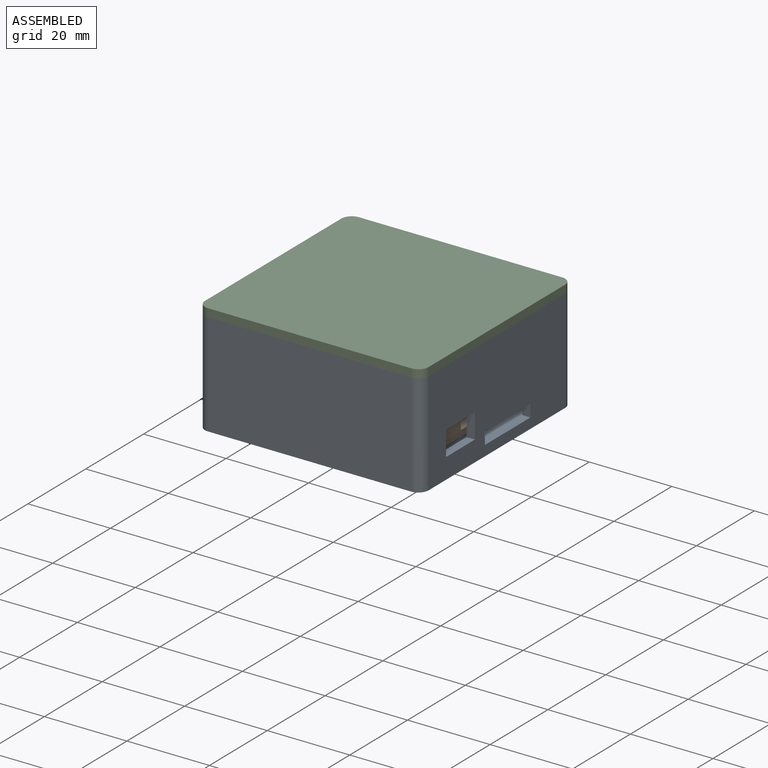
[diagram: assembled view]
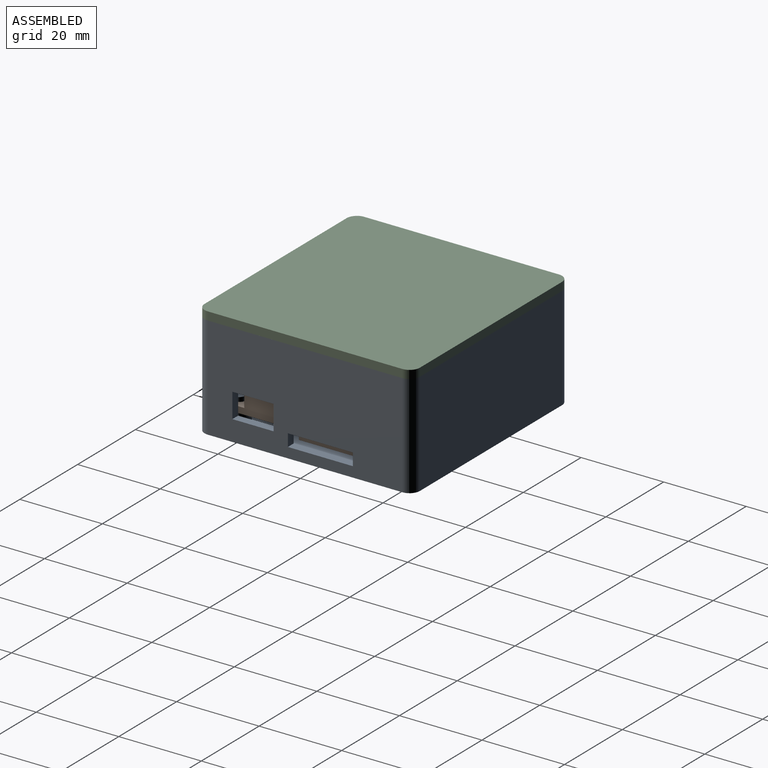
[diagram: assembled view, second angle]
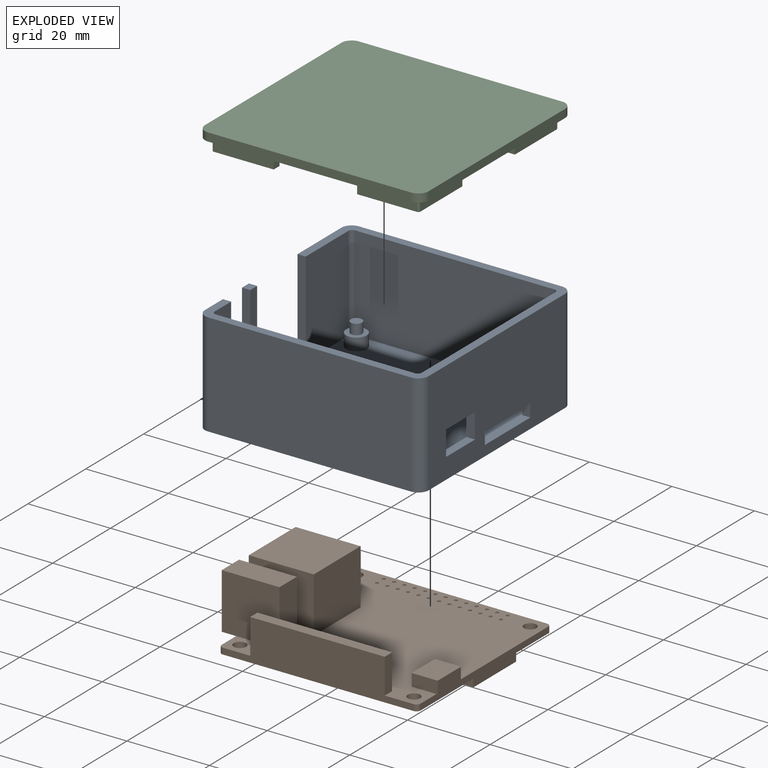
[diagram: exploded view]
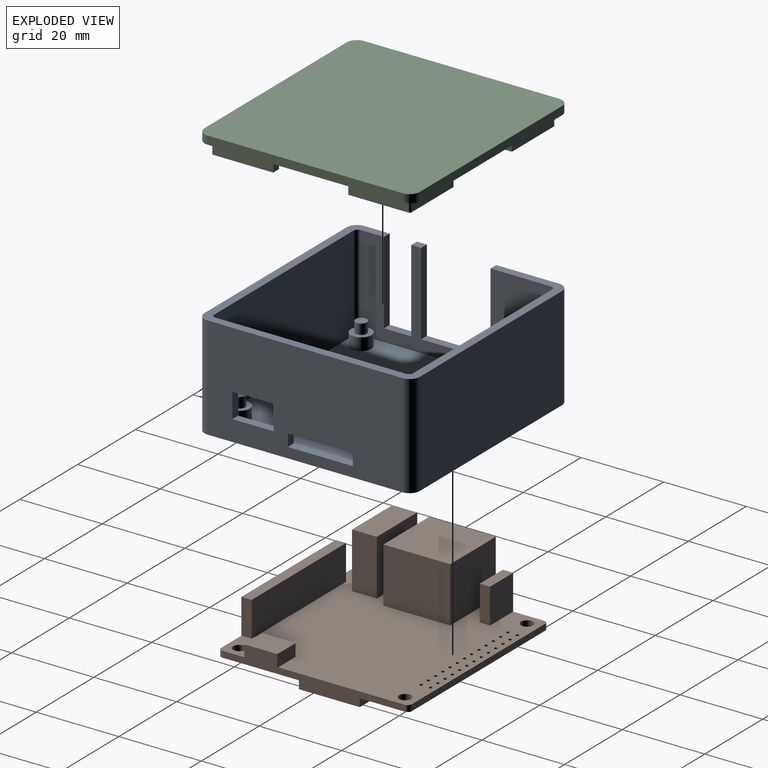
[diagram: exploded view, second angle]
ASSEMBLY  parts=3 mates=2
PART A: 50 faces, bbox 54.2x52.2x25 mm
  f0: plane 54.2x52.2mm, normal (0,0,1), area 353.5mm2, adj f1,f19,f20,f21,f22,f23,f24,f25
  f1: plane 46.2x23mm, normal (1,0,0), area 594.6mm2, adj f0,f2,f23,f24,f26,f36,f37,f38
  f2: plane 50.2x48.2mm, normal (0,0,1), area 2340.2mm2, adj f1,f3,f5,f7,f9,f19,f20,f21
  f3: cylinder r=2.5mm len=5mm, axis (0,0,-1), area 47.1mm2, adj f2,f4
  f4: plane 5x5mm, normal (0,0,1), area 13.7mm2, adj f3,f11
  f5: cylinder r=2.5mm len=5mm, axis (0,0,-1), area 47.1mm2, adj f2,f6
  f6: plane 5x5mm, normal (0,0,1), area 13.7mm2, adj f5,f13
  f7: cylinder r=2.5mm len=5mm, axis (0,0,-1), area 47.1mm2, adj f2,f8
  f8: plane 5x5mm, normal (0,0,1), area 13.7mm2, adj f7,f15
  f9: cylinder r=2.5mm len=5mm, axis (0,0,-1), area 47.1mm2, adj f2,f10
  f10: plane 5x5mm, normal (0,0,1), area 13.7mm2, adj f9,f17
  f11: cylinder r=1.38mm len=2.75mm, axis (0,0,-1), area 21.6mm2, adj f4,f12
  f12: plane 2.75x2.75mm, normal (0,0,1), area 5.9mm2, adj f11
  f13: cylinder r=1.38mm len=2.75mm, axis (0,0,-1), area 21.6mm2, adj f6,f14
  f14: plane 2.75x2.75mm, normal (0,0,1), area 5.9mm2, adj f13
  f15: cylinder r=1.38mm len=2.75mm, axis (0,0,-1), area 21.6mm2, adj f8,f16
  f16: plane 2.75x2.75mm, normal (0,0,1), area 5.9mm2, adj f15
  f17: cylinder r=1.38mm len=2.75mm, axis (0,0,-1), area 21.6mm2, adj f10,f18
  f18: plane 2.75x2.75mm, normal (0,0,1), area 5.9mm2, adj f17
  f19: cylinder r=1mm len=23mm, axis (0,0,-1), area 36.1mm2, adj f0,f2,f20,f25
  f20: plane 46.2x23mm, normal (-1,0,0), area 955.4mm2, adj f0,f2,f19,f21,f42,f43,f44,f45
  f21: cylinder r=1mm len=23mm, axis (0,0,-1), area 36.1mm2, adj f0,f2,f20,f22
  f22: plane 48.2x23mm, normal (0,1,0), area 1108.6mm2, adj f0,f2,f21,f23
  f23: cylinder r=1mm len=23mm, axis (0,0,-1), area 36.1mm2, adj f0,f1,f2,f22
  f24: cylinder r=1mm len=23mm, axis (0,0,-1), area 36.1mm2, adj f0,f1,f2,f25
  f25: plane 48.2x23mm, normal (0,-1,0), area 1108.6mm2, adj f0,f2,f19,f24
  f26: plane 2.4x2mm, normal (0,0,1), area 4.8mm2, adj f1,f31,f37,f39
  f27: plane 54.2x52.2mm, normal (0,0,-1), area 2823.9mm2, adj f28,f29,f30,f31,f32,f33,f34,f35
  f28: cylinder r=2.5mm len=25mm, axis (0,0,-1), area 98.2mm2, adj f0,f27,f29,f35
  f29: plane 49.2x25mm, normal (0,-1,0), area 1230mm2, adj f0,f27,f28,f30
  f30: cylinder r=2.5mm len=25mm, axis (0,0,-1), area 98.2mm2, adj f0,f27,f29,f31
  f31: plane 47.2x25mm, normal (-1,0,0), area 712mm2, adj f0,f26,f27,f30,f32,f36,f37,f38
  f32: cylinder r=2.5mm len=25mm, axis (0,0,-1), area 98.2mm2, adj f0,f27,f31,f33
  f33: plane 49.2x25mm, normal (0,1,0), area 1230mm2, adj f0,f27,f32,f34
  f34: cylinder r=2.5mm len=25mm, axis (0,0,-1), area 98.2mm2, adj f0,f27,f33,f35
  f35: plane 47.2x25mm, normal (1,0,0), area 1072.7mm2, adj f0,f27,f28,f34,f42,f43,f44,f45
  f36: plane 20x2mm, normal (0,1,0), area 40mm2, adj f0,f1,f31,f38
  f37: plane 20x2mm, normal (0,-1,0), area 40mm2, adj f1,f26,f31,f38
  f38: plane 6.6x2mm, normal (0,0,1), area 13.2mm2, adj f1,f31,f36,f37
  f39: plane 20x2mm, normal (0,1,0), area 40mm2, adj f1,f26,f31,f41
  f40: plane 20x2mm, normal (0,-1,0), area 40mm2, adj f0,f1,f31,f41
  f41: plane 16.8x2mm, normal (0,0,1), area 33.6mm2, adj f1,f31,f39,f40
  f42: plane 15.75x2mm, normal (0,0,1), area 31.5mm2, adj f20,f35,f43,f44
  f43: plane 3x2mm, normal (0,1,0), area 6mm2, adj f20,f35,f42,f45
  f44: plane 3x2mm, normal (0,-1,0), area 6mm2, adj f20,f35,f42,f45
  f45: plane 15.75x2mm, normal (0,0,-1), area 31.5mm2, adj f20,f35,f43,f44
  f46: plane 10x2mm, normal (0,0,1), area 20mm2, adj f20,f35,f47,f48
  f47: plane 6x2mm, normal (0,1,0), area 12mm2, adj f20,f35,f46,f49
  f48: plane 6x2mm, normal (0,-1,0), area 12mm2, adj f20,f35,f46,f49
  f49: plane 10x2mm, normal (0,0,-1), area 20mm2, adj f20,f35,f47,f48
PART B: 71 faces, bbox 52x46.2x17 mm
  f0: plane 14.5x2mm, normal (0,1,0), area 29mm2, adj f15,f68,f69,f70
  f1: plane 14.5x2mm, normal (0,-1,0), area 29mm2, adj f15,f68,f69,f70
  f2: plane 48.2x46.2mm, normal (0,0,1), area 1769.6mm2, adj f3,f4,f5,f6,f7,f8,f9,f10
  f3: cylinder r=1mm len=1.5mm, axis (0,0,-1), area 2.4mm2, adj f2,f4,f14,f15
  f4: plane 46.2x1.5mm, normal (0,1,0), area 69.3mm2, adj f2,f3,f5,f15
  f5: cylinder r=1mm len=1.5mm, axis (0,0,-1), area 2.4mm2, adj f2,f4,f6,f15
  f6: plane 44.2x10mm, normal (-1,0,0), area 87.6mm2, adj f2,f5,f7,f15,f52,f54,f55,f61
  f7: cylinder r=1mm len=1.5mm, axis (0,0,-1), area 2.4mm2, adj f2,f6,f8,f15
  f8: plane 46.2x10mm, normal (0,-1,0), area 346.4mm2, adj f2,f7,f9,f15,f16,f18,f19
  f9: cylinder r=1mm len=1.5mm, axis (0,0,-1), area 2.4mm2, adj f2,f8,f14,f15
  f10: cylinder r=1.5mm len=3mm, axis (0,0,-1), area 14.1mm2, adj f2,f15
  f11: cylinder r=1.5mm len=3mm, axis (0,0,-1), area 14.1mm2, adj f2,f15
  f12: cylinder r=1.5mm len=3mm, axis (0,0,-1), area 14.1mm2, adj f2,f15
  f13: cylinder r=1.5mm len=3mm, axis (0,0,-1), area 14.1mm2, adj f2,f15
  f14: plane 44.2x1.5mm, normal (1,0,0), area 66.3mm2, adj f2,f3,f9,f15,f24
  f15: plane 48.2x46.2mm, normal (0,0,-1), area 1970.8mm2, adj f0,f1,f3,f4,f5,f6,f7,f8
  f16: plane 8.5x2.5mm, normal (1,0,0), area 21.2mm2, adj f2,f8,f17,f19
  f17: plane 32.6x8.5mm, normal (0,1,0), area 277.1mm2, adj f2,f16,f18,f19
  f18: plane 8.5x2.5mm, normal (-1,0,0), area 21.2mm2, adj f2,f8,f17,f19
  f19: plane 32.6x2.5mm, normal (0,0,1), area 81.5mm2, adj f8,f16,f17,f18
  f20: plane 6.3x3mm, normal (0,-1,0), area 18.9mm2, adj f2,f22,f23,f24,f25
  f21: plane 6.3x3mm, normal (0,1,0), area 18.9mm2, adj f2,f22,f23,f24,f25
  f22: plane 8x3mm, normal (-1,0,0), area 24mm2, adj f2,f20,f21,f23
  f23: plane 8x6.3mm, normal (0,0,1), area 50.4mm2, adj f20,f21,f22,f25
  f24: plane 8x0.3mm, normal (0,0,-1), area 2.4mm2, adj f14,f20,f21,f25
  f25: plane 8x3mm, normal (1,0,0), area 24mm2, adj f20,f21,f23,f24
  f26: cylinder r=0.4mm len=1.5mm, axis (0,0,1), area 3.8mm2, adj f2,f15
  f27: cylinder r=0.4mm len=1.5mm, axis (0,0,1), area 3.8mm2, adj f2,f15
  f28: cylinder r=0.4mm len=1.5mm, axis (0,0,1), area 3.8mm2, adj f2,f15
  f29: cylinder r=0.4mm len=1.5mm, axis (0,0,1), area 3.8mm2, adj f2,f15
  f30: cylinder r=0.4mm len=1.5mm, axis (0,0,1), area 3.8mm2, adj f2,f15
  f31: cylinder r=0.4mm len=1.5mm, axis (0,0,1), area 3.8mm2, adj f2,f15
  f32: cylinder r=0.4mm len=1.5mm, axis (0,0,1), area 3.8mm2, adj f2,f15
  f33: cylinder r=0.4mm len=1.5mm, axis (0,0,1), area 3.8mm2, adj f2,f15
  f34: cylinder r=0.4mm len=1.5mm, axis (0,0,1), area 3.8mm2, adj f2,f15
  f35: cylinder r=0.4mm len=1.5mm, axis (0,0,1), area 3.8mm2, adj f2,f15
  f36: cylinder r=0.4mm len=1.5mm, axis (0,0,1), area 3.8mm2, adj f2,f15
  f37: cylinder r=0.4mm len=1.5mm, axis (0,0,1), area 3.8mm2, adj f2,f15
  f38: cylinder r=0.4mm len=1.5mm, axis (0,0,1), area 3.8mm2, adj f2,f15
  f39: cylinder r=0.4mm len=1.5mm, axis (0,0,1), area 3.8mm2, adj f2,f15
  f40: cylinder r=0.4mm len=1.5mm, axis (0,0,1), area 3.8mm2, adj f2,f15
  f41: cylinder r=0.4mm len=1.5mm, axis (0,0,1), area 3.8mm2, adj f2,f15
  f42: cylinder r=0.4mm len=1.5mm, axis (0,0,1), area 3.8mm2, adj f2,f15
  f43: cylinder r=0.4mm len=1.5mm, axis (0,0,1), area 3.8mm2, adj f2,f15
  f44: cylinder r=0.4mm len=1.5mm, axis (0,0,1), area 3.8mm2, adj f2,f15
  f45: cylinder r=0.4mm len=1.5mm, axis (0,0,1), area 3.8mm2, adj f2,f15
  f46: cylinder r=0.4mm len=1.5mm, axis (0,0,1), area 3.8mm2, adj f2,f15
  f47: cylinder r=0.4mm len=1.5mm, axis (0,0,1), area 3.8mm2, adj f2,f15
  f48: cylinder r=0.4mm len=1.5mm, axis (0,0,1), area 3.8mm2, adj f2,f15
  f49: cylinder r=0.4mm len=1.5mm, axis (0,0,1), area 3.8mm2, adj f2,f15
  f50: cylinder r=0.4mm len=1.5mm, axis (0,0,1), area 3.8mm2, adj f2,f15
  f51: cylinder r=0.4mm len=1.5mm, axis (0,0,1), area 3.8mm2, adj f2,f15
  f52: plane 8.5x8mm, normal (0,-1,0), area 68mm2, adj f2,f6,f53,f55
  f53: plane 8.5x2.5mm, normal (1,0,0), area 21.3mm2, adj f2,f52,f54,f55
  f54: plane 8.5x8mm, normal (0,1,0), area 68mm2, adj f2,f6,f53,f55
  f55: plane 8x2.5mm, normal (0,0,1), area 20mm2, adj f6,f52,f53,f54
  f56: plane 16.2x13.4mm, normal (-1,0,0), area 217.1mm2, adj f57,f59,f60,f61
  f57: plane 15.75x13.4mm, normal (0,-1,0), area 211mm2, adj f2,f56,f58,f60,f61
  f58: plane 16.2x13.4mm, normal (1,0,0), area 217.1mm2, adj f2,f57,f59,f60
  f59: plane 15.75x13.4mm, normal (0,1,0), area 211mm2, adj f2,f56,f58,f60,f61
  f60: plane 16.2x15.75mm, normal (0,0,1), area 255.1mm2, adj f56,f57,f58,f59
  f61: plane 16.2x3.25mm, normal (0,0,-1), area 52.6mm2, adj f6,f56,f57,f59
  f62: plane 14x13.5mm, normal (0,-1,0), area 189mm2, adj f2,f63,f65,f66,f67
  f63: plane 13.5x6mm, normal (1,0,0), area 81mm2, adj f2,f62,f64,f66
  f64: plane 14x13.5mm, normal (0,1,0), area 189mm2, adj f2,f63,f65,f66,f67
  f65: plane 13.5x6mm, normal (-1,0,0), area 81mm2, adj f62,f64,f66,f67
  f66: plane 14x6mm, normal (0,0,1), area 84mm2, adj f62,f63,f64,f65
  f67: plane 6x3.5mm, normal (0,0,-1), area 21mm2, adj f6,f62,f64,f65
  f68: plane 14.75x2mm, normal (-1,0,0), area 29.5mm2, adj f0,f1,f15,f69
  f69: plane 14.75x14.5mm, normal (0,0,-1), area 213.9mm2, adj f0,f1,f68,f70
  f70: plane 14.75x2mm, normal (1,0,0), area 29.5mm2, adj f0,f1,f15,f69
PART C: 40 faces, bbox 54.2x52.2x5 mm
  f0: plane 14.5x3mm, normal (0,-1,0), area 43.5mm2, adj f8,f21,f27,f34
  f1: plane 14.5x3mm, normal (1,0,0), area 43.5mm2, adj f4,f8,f23,f36
  f2: plane 14.5x3mm, normal (0,1,0), area 43.5mm2, adj f4,f8,f23,f38
  f3: plane 48.2x17mm, normal (0,0,-1), area 198.7mm2, adj f5,f7,f9,f12,f19,f20,f24,f25
  f4: plane 15x15mm, normal (0,0,-1), area 55.9mm2, adj f1,f2,f23,f31,f32,f36,f38
  f5: plane 13x3mm, normal (0,-1,0), area 39mm2, adj f3,f8,f30,f39
  f6: plane 13x3mm, normal (-1,0,0), area 39mm2, adj f8,f27,f33,f37
  f7: plane 13x3mm, normal (0,1,0), area 39mm2, adj f3,f8,f30,f35
  f8: plane 54.2x52.2mm, normal (0,0,-1), area 2513.3mm2, adj f0,f1,f2,f5,f6,f7,f9,f10
  f9: plane 6.5x3mm, normal (-1,0,0), area 19.5mm2, adj f3,f8,f19,f28
  f10: plane 49.2x2mm, normal (0,1,0), area 98.4mm2, adj f8,f11,f17,f18
  f11: cylinder r=2.5mm len=2.5mm, axis (0,0,-1), area 7.9mm2, adj f8,f10,f12,f18
  f12: plane 47.2x5mm, normal (-1,0,0), area 170mm2, adj f3,f8,f11,f13,f18,f28,f29
  f13: cylinder r=2.5mm len=2.5mm, axis (0,0,-1), area 7.9mm2, adj f8,f12,f14,f18
  f14: plane 49.2x2mm, normal (0,-1,0), area 98.4mm2, adj f8,f13,f15,f18
  f15: cylinder r=2.5mm len=2.5mm, axis (0,0,-1), area 7.9mm2, adj f8,f14,f16,f18
  f16: plane 47.2x2mm, normal (1,0,0), area 94.4mm2, adj f8,f15,f17,f18
  f17: cylinder r=2.5mm len=2.5mm, axis (0,0,-1), area 7.9mm2, adj f8,f10,f16,f18
  f18: plane 54.2x52.2mm, normal (0,0,1), area 2823.9mm2, adj f10,f11,f12,f13,f14,f15,f16,f17
  f19: cylinder r=0.5mm len=3mm, axis (0,0,1), area 2.4mm2, adj f3,f8,f9,f20
  f20: plane 14.5x3mm, normal (0,-1,0), area 43.5mm2, adj f3,f8,f19,f35
  f21: cylinder r=0.5mm len=3mm, axis (0,0,1), area 2.4mm2, adj f0,f8,f22,f27
  f22: plane 14.5x3mm, normal (1,0,0), area 43.5mm2, adj f8,f21,f27,f37
  f23: cylinder r=0.5mm len=3mm, axis (0,0,1), area 2.4mm2, adj f1,f2,f4,f8
  f24: plane 14.5x3mm, normal (0,1,0), area 43.5mm2, adj f3,f8,f25,f39
  f25: cylinder r=0.5mm len=3mm, axis (0,0,1), area 2.4mm2, adj f3,f8,f24,f26
  f26: plane 15.5x3mm, normal (-1,0,0), area 46.5mm2, adj f3,f8,f25,f29
  f27: plane 15x15mm, normal (0,0,-1), area 55.9mm2, adj f0,f6,f21,f22,f33,f34,f37
  f28: plane 3x2mm, normal (0,-1,0), area 6mm2, adj f3,f8,f9,f12
  f29: plane 3x2mm, normal (0,1,0), area 6mm2, adj f3,f8,f12,f26
  f30: plane 44.2x3mm, normal (1,0,0), area 132.6mm2, adj f3,f5,f7,f8
  f31: plane 13x3mm, normal (0,-1,0), area 39mm2, adj f4,f8,f32,f38
  f32: plane 13x3mm, normal (-1,0,0), area 39mm2, adj f4,f8,f31,f36
  f33: plane 13x3mm, normal (0,1,0), area 39mm2, adj f6,f8,f27,f34
  f34: plane 3x2mm, normal (-1,0,0), area 6mm2, adj f0,f8,f27,f33
  f35: plane 3x2mm, normal (1,0,0), area 6mm2, adj f3,f7,f8,f20
  f36: plane 3x2mm, normal (0,-1,0), area 6mm2, adj f1,f4,f8,f32
  f37: plane 3x2mm, normal (0,1,0), area 6mm2, adj f6,f8,f22,f27
  f38: plane 3x2mm, normal (-1,0,0), area 6mm2, adj f2,f4,f8,f31
  f39: plane 3x2mm, normal (1,0,0), area 6mm2, adj f3,f5,f8,f24
PLACE A t=(-0.84,3.76,-8.47)mm
PLACE B t=(-0.62,1.66,-3.47)mm
PLACE C rot(axis=(0,0,1),0deg) t=(-27.72,-24.44,16.53)mm
MATE fastened B.f12 <-> A.f7  axis (0,0,-1) through (20.48,-18.44,-3.47)mm
MATE fastened C.f8 <-> A.f0  axis (0,0,-1) through (-27.72,-21.94,16.53)mm
